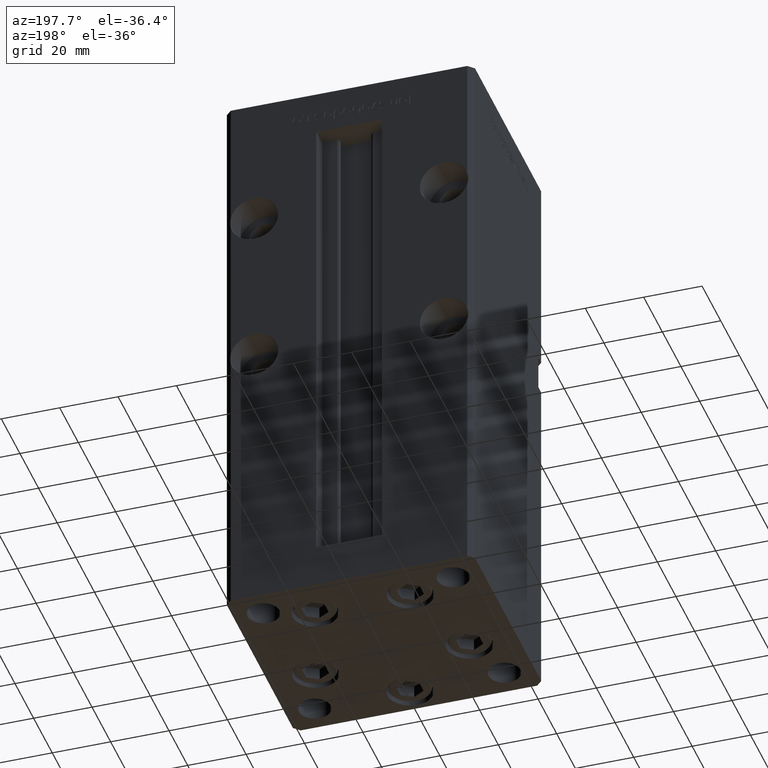
[diagram: clean part render]
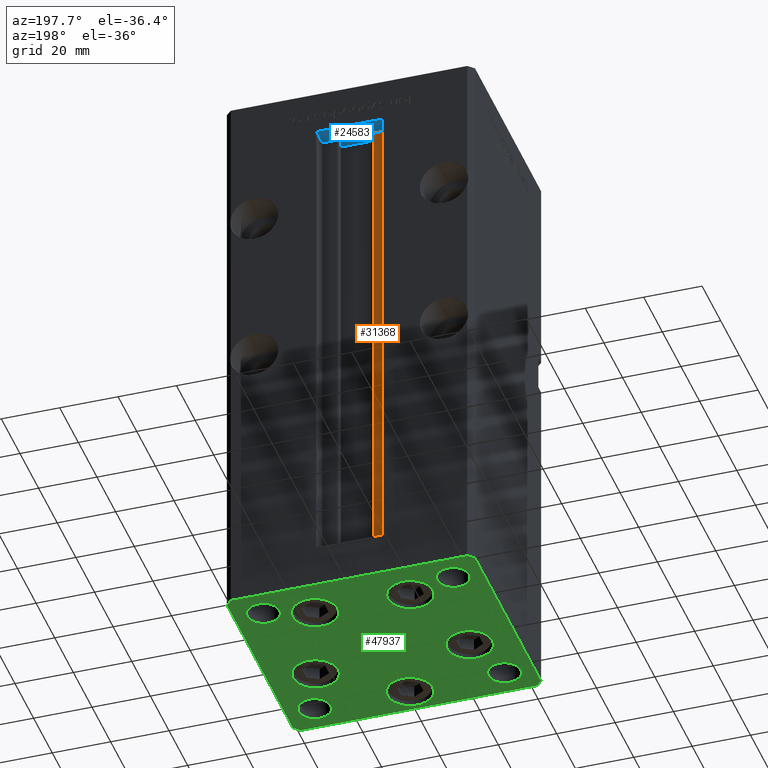
[diagram: same view with three faces highlighted in distinct colors, each labeled with its STEP entity id]
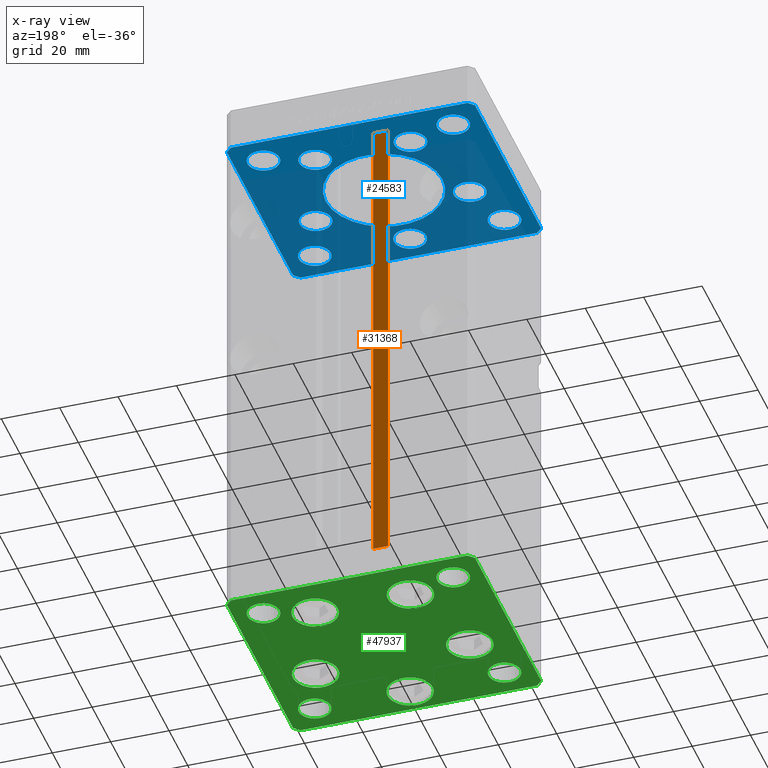
[diagram: x-ray of the same camera — body ghosted, the three highlighted faces saturated]
A machine part, auxiliary view with three faces highlighted in distinct colors.
The next image is the same camera in x-ray (body ghosted, the three faces saturated) — at least one of them is partly hidden behind the body in this view.
Their STEP definitions:

[orange] entity #31368 — the highlighted planar face has unit normal (0, -1, 0).
#6 = DIRECTION ( 'NONE',  ( -1.000000000000000000, 0.000000000000000000, 0.000000000000000000 ) ) ;
#88 = CARTESIAN_POINT ( 'NONE',  ( -6.183333333333997928, 31.00000000000000000, 0.000000000000000000 ) ) ;
#1266 = VERTEX_POINT ( 'NONE', #23713 ) ;
#2817 = CARTESIAN_POINT ( 'NONE',  ( -6.183333333333997928, 31.00000000000000000, 168.5000000000000000 ) ) ;
#5514 = VECTOR ( 'NONE', #21462, 1000.000000000000000 ) ;
#6601 = LINE ( 'NONE', #22735, #43287 ) ;
#8189 = VERTEX_POINT ( 'NONE', #32464 ) ;
#8397 = ORIENTED_EDGE ( 'NONE', *, *, #15494, .F. ) ;
#11380 = DIRECTION ( 'NONE',  ( 0.000000000000000000, -1.000000000000000000, -0.000000000000000000 ) ) ;
#13324 = VECTOR ( 'NONE', #14761, 1000.000000000000000 ) ;
#14761 = DIRECTION ( 'NONE',  ( -0.000000000000000000, -0.000000000000000000, 1.000000000000000000 ) ) ;
#15494 = EDGE_CURVE ( 'NONE', #1266, #43746, #48085, .T. ) ;
#18051 = ORIENTED_EDGE ( 'NONE', *, *, #46082, .T. ) ;
#18931 = AXIS2_PLACEMENT_3D ( 'NONE', #88, #11380, #32894 ) ;
#20110 = EDGE_CURVE ( 'NONE', #43746, #8189, #36849, .T. ) ;
#20512 = FACE_OUTER_BOUND ( 'NONE', #21321, .T. ) ;
#21321 = EDGE_LOOP ( 'NONE', ( #8397, #26878, #18051, #29896 ) ) ;
#21462 = DIRECTION ( 'NONE',  ( 1.000000000000000000, -0.000000000000000000, -0.000000000000000000 ) ) ;
#22735 = CARTESIAN_POINT ( 'NONE',  ( -11.24999999999999822, 31.00000000000000000, 0.000000000000000000 ) ) ;
#23713 = CARTESIAN_POINT ( 'NONE',  ( -6.183333333333997928, 31.00000000000000000, 0.000000000000000000 ) ) ;
#26878 = ORIENTED_EDGE ( 'NONE', *, *, #45515, .F. ) ;
#29896 = ORIENTED_EDGE ( 'NONE', *, *, #20110, .F. ) ;
#30852 = CARTESIAN_POINT ( 'NONE',  ( -11.24999999999999822, 31.00000000000000000, 0.000000000000000000 ) ) ;
#31368 = ADVANCED_FACE ( 'NONE', ( #20512 ), #36924, .F. ) ;
#32464 = CARTESIAN_POINT ( 'NONE',  ( -11.24999999999999822, 31.00000000000000000, 168.5000000000000000 ) ) ;
#32894 = DIRECTION ( 'NONE',  ( 0.000000000000000000, 0.000000000000000000, -1.000000000000000000 ) ) ;
#33846 = LINE ( 'NONE', #37883, #5514 ) ;
#36849 = LINE ( 'NONE', #37117, #44259 ) ;
#36924 = PLANE ( 'NONE',  #18931 ) ;
#37117 = CARTESIAN_POINT ( 'NONE',  ( 0.000000000000000000, 31.00000000000000000, 168.5000000000000000 ) ) ;
#37883 = CARTESIAN_POINT ( 'NONE',  ( -6.183333333333997928, 31.00000000000000000, 0.000000000000000000 ) ) ;
#38079 = DIRECTION ( 'NONE',  ( -0.000000000000000000, -0.000000000000000000, 1.000000000000000000 ) ) ;
#43287 = VECTOR ( 'NONE', #38079, 1000.000000000000000 ) ;
#43746 = VERTEX_POINT ( 'NONE', #2817 ) ;
#44259 = VECTOR ( 'NONE', #6, 1000.000000000000000 ) ;
#45515 = EDGE_CURVE ( 'NONE', #49323, #1266, #33846, .T. ) ;
#46082 = EDGE_CURVE ( 'NONE', #49323, #8189, #6601, .T. ) ;
#47303 = CARTESIAN_POINT ( 'NONE',  ( -6.183333333333997928, 31.00000000000000000, 0.000000000000000000 ) ) ;
#48085 = LINE ( 'NONE', #47303, #13324 ) ;
#49323 = VERTEX_POINT ( 'NONE', #30852 ) ;

[blue] entity #24583 — the highlighted planar face has unit normal (0, 0, 1).
#256 = EDGE_CURVE ( 'NONE', #2017, #50731, #44638, .T. ) ;
#277 = VECTOR ( 'NONE', #16950, 1000.000000000000000 ) ;
#366 = AXIS2_PLACEMENT_3D ( 'NONE', #19542, #45639, #49420 ) ;
#539 = CARTESIAN_POINT ( 'NONE',  ( 40.50000000000000711, 37.50000000000000711, -15.00000000000000000 ) ) ;
#660 = DIRECTION ( 'NONE',  ( 0.000000000000000000, -0.000000000000000000, -1.000000000000000000 ) ) ;
#827 = VECTOR ( 'NONE', #22418, 1000.000000000000000 ) ;
#978 = FACE_BOUND ( 'NONE', #32902, .T. ) ;
#1131 = AXIS2_PLACEMENT_3D ( 'NONE', #43585, #23390, #32002 ) ;
#1181 = LINE ( 'NONE', #18660, #827 ) ;
#1288 = DIRECTION ( 'NONE',  ( 0.000000000000000000, -0.000000000000000000, -1.000000000000000000 ) ) ;
#1493 = VERTEX_POINT ( 'NONE', #46571 ) ;
#1818 = CARTESIAN_POINT ( 'NONE',  ( -26.39865316429777664, -9.333333333333330373, -15.00000000000000000 ) ) ;
#1860 = CIRCLE ( 'NONE', #31922, 5.499999999999998224 ) ;
#1990 = CIRCLE ( 'NONE', #23432, 5.500000000000000000 ) ;
#2017 = VERTEX_POINT ( 'NONE', #36514 ) ;
#2047 = VERTEX_POINT ( 'NONE', #48623 ) ;
#2139 = CIRCLE ( 'NONE', #33948, 5.499999999999998224 ) ;
#2289 = ORIENTED_EDGE ( 'NONE', *, *, #11525, .F. ) ;
#2308 = DIRECTION ( 'NONE',  ( -0.000000000000000000, 0.000000000000000000, 1.000000000000000000 ) ) ;
#2550 = DIRECTION ( 'NONE',  ( 1.000000000000000000, 0.000000000000000000, 0.000000000000000000 ) ) ;
#2917 = CARTESIAN_POINT ( 'NONE',  ( 26.39865316429777664, -9.333333333333330373, -15.00000000000000000 ) ) ;
#2936 = ORIENTED_EDGE ( 'NONE', *, *, #19392, .F. ) ;
#3066 = DIRECTION ( 'NONE',  ( -1.000000000000000000, 0.000000000000000000, 0.000000000000000000 ) ) ;
#3081 = EDGE_LOOP ( 'NONE', ( #8530, #18808 ) ) ;
#3188 = DIRECTION ( 'NONE',  ( 0.000000000000000000, -0.000000000000000000, -1.000000000000000000 ) ) ;
#3408 = VERTEX_POINT ( 'NONE', #36142 ) ;
#3783 = ORIENTED_EDGE ( 'NONE', *, *, #46060, .T. ) ;
#3863 = CIRCLE ( 'NONE', #14175, 5.499999999999998224 ) ;
#3952 = DIRECTION ( 'NONE',  ( 0.000000000000000000, -0.000000000000000000, -1.000000000000000000 ) ) ;
#4131 = CARTESIAN_POINT ( 'NONE',  ( -20.00000000000000000, 2.449293598294706513E-15, -15.00000000000000000 ) ) ;
#4652 = AXIS2_PLACEMENT_3D ( 'NONE', #37509, #660, #32678 ) ;
#5019 = FACE_BOUND ( 'NONE', #3081, .T. ) ;
#5278 = FACE_BOUND ( 'NONE', #16309, .T. ) ;
#5599 = EDGE_CURVE ( 'NONE', #40902, #23048, #6888, .T. ) ;
#5600 = CARTESIAN_POINT ( 'NONE',  ( 42.50000000000001421, 35.50000000000002132, -15.00000000000000000 ) ) ;
#5815 = CARTESIAN_POINT ( 'NONE',  ( -40.50000000000000711, -37.50000000000003553, -15.00000000000000000 ) ) ;
#6621 = ORIENTED_EDGE ( 'NONE', *, *, #8224, .F. ) ;
#6888 = CIRCLE ( 'NONE', #50715, 5.499999999999998224 ) ;
#7089 = AXIS2_PLACEMENT_3D ( 'NONE', #46106, #3952, #9254 ) ;
#7404 = VECTOR ( 'NONE', #20020, 1000.000000000000000 ) ;
#8023 = CARTESIAN_POINT ( 'NONE',  ( -38.00000000000000000, -27.50000000000000355, -15.00000000000000000 ) ) ;
#8096 = CIRCLE ( 'NONE', #4652, 5.499999999999998224 ) ;
#8224 = EDGE_CURVE ( 'NONE', #20137, #25312, #30290, .T. ) ;
#8403 = DIRECTION ( 'NONE',  ( 0.7071067811865487940, -0.7071067811865463515, 0.000000000000000000 ) ) ;
#8426 = EDGE_LOOP ( 'NONE', ( #30405, #25465 ) ) ;
#8451 = VERTEX_POINT ( 'NONE', #28544 ) ;
#8530 = ORIENTED_EDGE ( 'NONE', *, *, #256, .F. ) ;
#8831 = EDGE_LOOP ( 'NONE', ( #51773, #48941 ) ) ;
#8879 = CARTESIAN_POINT ( 'NONE',  ( 32.50000000000000000, 27.49999999999999645, -15.00000000000000000 ) ) ;
#9245 = CARTESIAN_POINT ( 'NONE',  ( 0.000000000000000000, 0.000000000000000000, -15.00000000000000000 ) ) ;
#9254 = DIRECTION ( 'NONE',  ( 1.000000000000000000, 0.000000000000000000, 0.000000000000000000 ) ) ;
#9325 = FACE_BOUND ( 'NONE', #17382, .T. ) ;
#9402 = DIRECTION ( 'NONE',  ( 0.000000000000000000, -0.000000000000000000, -1.000000000000000000 ) ) ;
#9725 = EDGE_CURVE ( 'NONE', #1493, #31456, #1990, .T. ) ;
#9743 = EDGE_CURVE ( 'NONE', #32308, #10624, #17475, .T. ) ;
#10017 = VECTOR ( 'NONE', #51292, 1000.000000000000000 ) ;
#10624 = VERTEX_POINT ( 'NONE', #10894 ) ;
#10894 = CARTESIAN_POINT ( 'NONE',  ( -40.50000000000000000, 37.49999999999997158, -15.00000000000000000 ) ) ;
#11525 = EDGE_CURVE ( 'NONE', #30380, #32308, #35901, .T. ) ;
#11783 = DIRECTION ( 'NONE',  ( 1.000000000000000000, 0.000000000000000000, 0.000000000000000000 ) ) ;
#11987 = DIRECTION ( 'NONE',  ( 0.000000000000000000, -0.000000000000000000, -1.000000000000000000 ) ) ;
#12471 = EDGE_CURVE ( 'NONE', #23048, #40902, #8096, .T. ) ;
#12640 = DIRECTION ( 'NONE',  ( 1.000000000000000000, 0.000000000000000000, 0.000000000000000000 ) ) ;
#13257 = DIRECTION ( 'NONE',  ( -0.000000000000000000, -0.000000000000000000, -1.000000000000000000 ) ) ;
#13413 = DIRECTION ( 'NONE',  ( 1.000000000000000000, 0.000000000000000000, 0.000000000000000000 ) ) ;
#13479 = AXIS2_PLACEMENT_3D ( 'NONE', #46974, #2308, #39155 ) ;
#13734 = CIRCLE ( 'NONE', #36922, 5.499999999999998224 ) ;
#14075 = CIRCLE ( 'NONE', #20933, 5.499999999999998224 ) ;
#14175 = AXIS2_PLACEMENT_3D ( 'NONE', #38947, #35719, #39221 ) ;
#14301 = LINE ( 'NONE', #22886, #20325 ) ;
#14414 = CARTESIAN_POINT ( 'NONE',  ( -16.32291334290544071, 22.74999999999999289, -15.00000000000000000 ) ) ;
#14444 = ORIENTED_EDGE ( 'NONE', *, *, #34405, .F. ) ;
#14637 = VERTEX_POINT ( 'NONE', #22360 ) ;
#14935 = ORIENTED_EDGE ( 'NONE', *, *, #33063, .F. ) ;
#15098 = CIRCLE ( 'NONE', #17693, 5.499999999999998224 ) ;
#15258 = EDGE_CURVE ( 'NONE', #22866, #48529, #2139, .T. ) ;
#15454 = CARTESIAN_POINT ( 'NONE',  ( -31.89865316429777664, -9.333333333333330373, -15.00000000000000000 ) ) ;
#15456 = AXIS2_PLACEMENT_3D ( 'NONE', #9245, #25630, #18097 ) ;
#15467 = DIRECTION ( 'NONE',  ( -0.7071067811865524577, 0.7071067811865426878, 0.000000000000000000 ) ) ;
#15468 = DIRECTION ( 'NONE',  ( 0.000000000000000000, -0.000000000000000000, -1.000000000000000000 ) ) ;
#15498 = EDGE_CURVE ( 'NONE', #30916, #43207, #3863, .T. ) ;
#15511 = CARTESIAN_POINT ( 'NONE',  ( 0.000000000000000000, -28.00000000000000000, -15.00000000000000000 ) ) ;
#15563 = DIRECTION ( 'NONE',  ( 0.000000000000000000, -0.000000000000000000, -1.000000000000000000 ) ) ;
#15817 = ORIENTED_EDGE ( 'NONE', *, *, #32762, .F. ) ;
#16306 = CARTESIAN_POINT ( 'NONE',  ( 38.00000000000000000, 27.49999999999999645, -15.00000000000000000 ) ) ;
#16309 = EDGE_LOOP ( 'NONE', ( #43122, #39316 ) ) ;
#16681 = CARTESIAN_POINT ( 'NONE',  ( 0.000000000000000000, -28.00000000000000000, -15.00000000000000000 ) ) ;
#16827 = CARTESIAN_POINT ( 'NONE',  ( 40.50000000000000711, 37.50000000000000711, -15.00000000000000000 ) ) ;
#16950 = DIRECTION ( 'NONE',  ( -1.000000000000000000, -4.283267841918041508E-16, 0.000000000000000000 ) ) ;
#17382 = EDGE_LOOP ( 'NONE', ( #50074, #29123 ) ) ;
#17395 = FACE_BOUND ( 'NONE', #23164, .T. ) ;
#17458 = ORIENTED_EDGE ( 'NONE', *, *, #19527, .F. ) ;
#17475 = LINE ( 'NONE', #539, #277 ) ;
#17560 = DIRECTION ( 'NONE',  ( 0.000000000000000000, -0.000000000000000000, -1.000000000000000000 ) ) ;
#17659 = FACE_BOUND ( 'NONE', #27340, .T. ) ;
#17693 = AXIS2_PLACEMENT_3D ( 'NONE', #21835, #17560, #46337 ) ;
#17961 = CARTESIAN_POINT ( 'NONE',  ( -32.50000000000000000, -27.50000000000000355, -15.00000000000000000 ) ) ;
#18084 = ORIENTED_EDGE ( 'NONE', *, *, #22107, .F. ) ;
#18097 = DIRECTION ( 'NONE',  ( 1.000000000000000000, 0.000000000000000000, 0.000000000000000000 ) ) ;
#18370 = CIRCLE ( 'NONE', #366, 5.499999999999998224 ) ;
#18577 = CIRCLE ( 'NONE', #44336, 5.499999999999998224 ) ;
#18660 = CARTESIAN_POINT ( 'NONE',  ( -42.50000000000000711, 35.50000000000000000, -15.00000000000000000 ) ) ;
#18808 = ORIENTED_EDGE ( 'NONE', *, *, #42020, .F. ) ;
#19392 = EDGE_CURVE ( 'NONE', #3408, #44634, #51015, .T. ) ;
#19499 = CARTESIAN_POINT ( 'NONE',  ( -40.50000000000000000, 37.49999999999997158, -15.00000000000000000 ) ) ;
#19527 = EDGE_CURVE ( 'NONE', #10624, #14637, #19759, .T. ) ;
#19542 = CARTESIAN_POINT ( 'NONE',  ( -32.50000000000000000, -27.50000000000000355, -15.00000000000000000 ) ) ;
#19734 = CARTESIAN_POINT ( 'NONE',  ( -32.50000000000000000, 27.50000000000000711, -15.00000000000000000 ) ) ;
#19759 = LINE ( 'NONE', #19499, #7404 ) ;
#19782 = VECTOR ( 'NONE', #41094, 1000.000000000000000 ) ;
#20020 = DIRECTION ( 'NONE',  ( -0.7071067811865536790, -0.7071067811865414665, 0.000000000000000000 ) ) ;
#20137 = VERTEX_POINT ( 'NONE', #29038 ) ;
#20239 = ORIENTED_EDGE ( 'NONE', *, *, #15258, .F. ) ;
#20325 = VECTOR ( 'NONE', #34733, 1000.000000000000114 ) ;
#20933 = AXIS2_PLACEMENT_3D ( 'NONE', #42912, #22192, #51279 ) ;
#21672 = FACE_OUTER_BOUND ( 'NONE', #23350, .T. ) ;
#21835 = CARTESIAN_POINT ( 'NONE',  ( 26.39865316429777664, -9.333333333333330373, -15.00000000000000000 ) ) ;
#22107 = EDGE_CURVE ( 'NONE', #25312, #20137, #32280, .T. ) ;
#22192 = DIRECTION ( 'NONE',  ( 0.000000000000000000, 0.000000000000000000, 1.000000000000000000 ) ) ;
#22213 = VERTEX_POINT ( 'NONE', #34086 ) ;
#22360 = CARTESIAN_POINT ( 'NONE',  ( -42.50000000000000711, 35.50000000000000000, -15.00000000000000000 ) ) ;
#22418 = DIRECTION ( 'NONE',  ( 9.773090005503134168E-17, -1.000000000000000000, 0.000000000000000000 ) ) ;
#22534 = EDGE_CURVE ( 'NONE', #42186, #47859, #15098, .T. ) ;
#22866 = VERTEX_POINT ( 'NONE', #42420 ) ;
#22886 = CARTESIAN_POINT ( 'NONE',  ( 40.50000000000001421, -37.49999999999992184, -15.00000000000000000 ) ) ;
#23048 = VERTEX_POINT ( 'NONE', #51844 ) ;
#23164 = EDGE_LOOP ( 'NONE', ( #45898, #15817 ) ) ;
#23243 = CIRCLE ( 'NONE', #33557, 5.499999999999998224 ) ;
#23350 = EDGE_LOOP ( 'NONE', ( #28902, #14444, #17458, #31608, #2289, #30386, #45032, #2936 ) ) ;
#23364 = EDGE_CURVE ( 'NONE', #43207, #30916, #18577, .T. ) ;
#23390 = DIRECTION ( 'NONE',  ( 0.000000000000000000, -0.000000000000000000, -1.000000000000000000 ) ) ;
#23432 = AXIS2_PLACEMENT_3D ( 'NONE', #16681, #9402, #12640 ) ;
#23983 = ORIENTED_EDGE ( 'NONE', *, *, #40888, .F. ) ;
#24086 = CIRCLE ( 'NONE', #30988, 5.500000000000000000 ) ;
#24166 = VERTEX_POINT ( 'NONE', #33659 ) ;
#24583 = ADVANCED_FACE ( 'NONE', ( #5019, #37827, #978, #17395, #33793, #9325, #25713, #5278, #21672, #17659, #27045 ), #34861, .F. ) ;
#24610 = CARTESIAN_POINT ( 'NONE',  ( 40.50000000000001421, -37.49999999999992184, -15.00000000000000000 ) ) ;
#25007 = DIRECTION ( 'NONE',  ( 1.000000000000000000, 0.000000000000000000, 0.000000000000000000 ) ) ;
#25076 = DIRECTION ( 'NONE',  ( -1.000000000000000000, 0.000000000000000000, 0.000000000000000000 ) ) ;
#25097 = VERTEX_POINT ( 'NONE', #45261 ) ;
#25259 = EDGE_CURVE ( 'NONE', #44634, #22213, #14301, .T. ) ;
#25312 = VERTEX_POINT ( 'NONE', #39288 ) ;
#25465 = ORIENTED_EDGE ( 'NONE', *, *, #5599, .F. ) ;
#25486 = CARTESIAN_POINT ( 'NONE',  ( 42.50000000000000711, -35.49999999999992895, -15.00000000000000000 ) ) ;
#25630 = DIRECTION ( 'NONE',  ( 0.000000000000000000, -0.000000000000000000, -1.000000000000000000 ) ) ;
#25713 = FACE_BOUND ( 'NONE', #45858, .T. ) ;
#26669 = CARTESIAN_POINT ( 'NONE',  ( 5.500000000000000000, -28.00000000000000000, -15.00000000000000000 ) ) ;
#27045 = FACE_BOUND ( 'NONE', #8831, .T. ) ;
#27336 = DIRECTION ( 'NONE',  ( 1.000000000000000000, 0.000000000000000000, 0.000000000000000000 ) ) ;
#27340 = EDGE_LOOP ( 'NONE', ( #20239, #23983 ) ) ;
#28544 = CARTESIAN_POINT ( 'NONE',  ( -27.00000000000000355, -27.50000000000000355, -15.00000000000000000 ) ) ;
#28579 = CARTESIAN_POINT ( 'NONE',  ( -38.00000000000000000, 27.50000000000000711, -15.00000000000000000 ) ) ;
#28593 = CARTESIAN_POINT ( 'NONE',  ( -42.50000000000000000, -35.50000000000004263, -15.00000000000000000 ) ) ;
#28838 = DIRECTION ( 'NONE',  ( -0.000000000000000000, -0.000000000000000000, -1.000000000000000000 ) ) ;
#28902 = ORIENTED_EDGE ( 'NONE', *, *, #52978, .F. ) ;
#29038 = CARTESIAN_POINT ( 'NONE',  ( 10.82291334290544604, 22.74999999999999289, -15.00000000000000000 ) ) ;
#29123 = ORIENTED_EDGE ( 'NONE', *, *, #43993, .F. ) ;
#29660 = DIRECTION ( 'NONE',  ( -1.000000000000000000, 0.000000000000000000, 0.000000000000000000 ) ) ;
#29921 = CARTESIAN_POINT ( 'NONE',  ( -32.50000000000000000, 27.50000000000000711, -15.00000000000000000 ) ) ;
#30290 = CIRCLE ( 'NONE', #7089, 5.499999999999998224 ) ;
#30380 = VERTEX_POINT ( 'NONE', #5600 ) ;
#30386 = ORIENTED_EDGE ( 'NONE', *, *, #32057, .F. ) ;
#30405 = ORIENTED_EDGE ( 'NONE', *, *, #12471, .F. ) ;
#30410 = EDGE_CURVE ( 'NONE', #32719, #8451, #41185, .T. ) ;
#30607 = DIRECTION ( 'NONE',  ( 0.000000000000000000, 0.000000000000000000, 1.000000000000000000 ) ) ;
#30675 = EDGE_CURVE ( 'NONE', #2047, #24166, #48958, .T. ) ;
#30916 = VERTEX_POINT ( 'NONE', #53107 ) ;
#30988 = AXIS2_PLACEMENT_3D ( 'NONE', #15511, #11987, #27336 ) ;
#31456 = VERTEX_POINT ( 'NONE', #26669 ) ;
#31608 = ORIENTED_EDGE ( 'NONE', *, *, #9743, .F. ) ;
#31922 = AXIS2_PLACEMENT_3D ( 'NONE', #19734, #39913, #3066 ) ;
#32002 = DIRECTION ( 'NONE',  ( 1.000000000000000000, 0.000000000000000000, 0.000000000000000000 ) ) ;
#32057 = EDGE_CURVE ( 'NONE', #22213, #30380, #41893, .T. ) ;
#32280 = CIRCLE ( 'NONE', #46878, 5.499999999999998224 ) ;
#32308 = VERTEX_POINT ( 'NONE', #16827 ) ;
#32678 = DIRECTION ( 'NONE',  ( 1.000000000000000000, 0.000000000000000000, 0.000000000000000000 ) ) ;
#32719 = VERTEX_POINT ( 'NONE', #8023 ) ;
#32762 = EDGE_CURVE ( 'NONE', #47859, #42186, #23243, .T. ) ;
#32892 = AXIS2_PLACEMENT_3D ( 'NONE', #48275, #15468, #52853 ) ;
#32902 = EDGE_LOOP ( 'NONE', ( #14935, #38902 ) ) ;
#33063 = EDGE_CURVE ( 'NONE', #31456, #1493, #24086, .T. ) ;
#33557 = AXIS2_PLACEMENT_3D ( 'NONE', #2917, #3188, #48653 ) ;
#33659 = CARTESIAN_POINT ( 'NONE',  ( -21.82291334290544071, 22.74999999999999289, -15.00000000000000000 ) ) ;
#33793 = FACE_BOUND ( 'NONE', #50312, .T. ) ;
#33821 = VECTOR ( 'NONE', #15467, 1000.000000000000000 ) ;
#33948 = AXIS2_PLACEMENT_3D ( 'NONE', #29921, #13257, #29660 ) ;
#34086 = CARTESIAN_POINT ( 'NONE',  ( 42.50000000000000711, -35.49999999999992895, -15.00000000000000000 ) ) ;
#34311 = DIRECTION ( 'NONE',  ( 0.000000000000000000, -0.000000000000000000, -1.000000000000000000 ) ) ;
#34405 = EDGE_CURVE ( 'NONE', #14637, #45226, #1181, .T. ) ;
#34733 = DIRECTION ( 'NONE',  ( 0.7071067811865474617, 0.7071067811865474617, 0.000000000000000000 ) ) ;
#34861 = PLANE ( 'NONE',  #13479 ) ;
#34893 = EDGE_CURVE ( 'NONE', #25097, #39792, #13734, .T. ) ;
#35719 = DIRECTION ( 'NONE',  ( -0.000000000000000000, -0.000000000000000000, -1.000000000000000000 ) ) ;
#35901 = LINE ( 'NONE', #52321, #33821 ) ;
#36142 = CARTESIAN_POINT ( 'NONE',  ( -40.50000000000000711, -37.50000000000003553, -15.00000000000000000 ) ) ;
#36514 = CARTESIAN_POINT ( 'NONE',  ( 20.00000000000000000, 0.000000000000000000, -15.00000000000000000 ) ) ;
#36922 = AXIS2_PLACEMENT_3D ( 'NONE', #8879, #37641, #25007 ) ;
#37059 = CARTESIAN_POINT ( 'NONE',  ( 16.32291334290544071, 22.74999999999999289, -15.00000000000000000 ) ) ;
#37453 = CARTESIAN_POINT ( 'NONE',  ( 32.50000000000000000, -27.50000000000000355, -15.00000000000000000 ) ) ;
#37509 = CARTESIAN_POINT ( 'NONE',  ( -26.39865316429777664, -9.333333333333330373, -15.00000000000000000 ) ) ;
#37641 = DIRECTION ( 'NONE',  ( 0.000000000000000000, 0.000000000000000000, 1.000000000000000000 ) ) ;
#37827 = FACE_BOUND ( 'NONE', #8426, .T. ) ;
#38598 = AXIS2_PLACEMENT_3D ( 'NONE', #14414, #34311, #2550 ) ;
#38902 = ORIENTED_EDGE ( 'NONE', *, *, #9725, .F. ) ;
#38947 = CARTESIAN_POINT ( 'NONE',  ( 32.50000000000000000, -27.50000000000000355, -15.00000000000000000 ) ) ;
#39155 = DIRECTION ( 'NONE',  ( 1.000000000000000000, 0.000000000000000000, 0.000000000000000000 ) ) ;
#39221 = DIRECTION ( 'NONE',  ( -1.000000000000000000, 0.000000000000000000, 0.000000000000000000 ) ) ;
#39288 = CARTESIAN_POINT ( 'NONE',  ( 21.82291334290544071, 22.74999999999999289, -15.00000000000000000 ) ) ;
#39316 = ORIENTED_EDGE ( 'NONE', *, *, #30410, .T. ) ;
#39792 = VERTEX_POINT ( 'NONE', #16306 ) ;
#39913 = DIRECTION ( 'NONE',  ( -0.000000000000000000, -0.000000000000000000, -1.000000000000000000 ) ) ;
#40548 = CARTESIAN_POINT ( 'NONE',  ( 20.89865316429778019, -9.333333333333330373, -15.00000000000000000 ) ) ;
#40888 = EDGE_CURVE ( 'NONE', #48529, #22866, #1860, .T. ) ;
#40902 = VERTEX_POINT ( 'NONE', #15454 ) ;
#41094 = DIRECTION ( 'NONE',  ( 9.773090005503145261E-17, 1.000000000000000000, 0.000000000000000000 ) ) ;
#41185 = CIRCLE ( 'NONE', #42077, 5.499999999999998224 ) ;
#41449 = CIRCLE ( 'NONE', #32892, 20.00000000000000000 ) ;
#41491 = CIRCLE ( 'NONE', #1131, 5.500000000000000000 ) ;
#41893 = LINE ( 'NONE', #25486, #19782 ) ;
#42020 = EDGE_CURVE ( 'NONE', #50731, #2017, #41449, .T. ) ;
#42077 = AXIS2_PLACEMENT_3D ( 'NONE', #17961, #30607, #42709 ) ;
#42186 = VERTEX_POINT ( 'NONE', #50682 ) ;
#42420 = CARTESIAN_POINT ( 'NONE',  ( -27.00000000000000355, 27.50000000000000711, -15.00000000000000000 ) ) ;
#42709 = DIRECTION ( 'NONE',  ( 1.000000000000000000, 0.000000000000000000, 0.000000000000000000 ) ) ;
#42912 = CARTESIAN_POINT ( 'NONE',  ( 32.50000000000000000, 27.49999999999999645, -15.00000000000000000 ) ) ;
#43122 = ORIENTED_EDGE ( 'NONE', *, *, #45867, .T. ) ;
#43207 = VERTEX_POINT ( 'NONE', #48943 ) ;
#43585 = CARTESIAN_POINT ( 'NONE',  ( -16.32291334290544071, 22.74999999999999289, -15.00000000000000000 ) ) ;
#43993 = EDGE_CURVE ( 'NONE', #24166, #2047, #41491, .T. ) ;
#44336 = AXIS2_PLACEMENT_3D ( 'NONE', #37453, #28838, #25076 ) ;
#44634 = VERTEX_POINT ( 'NONE', #24610 ) ;
#44638 = CIRCLE ( 'NONE', #15456, 20.00000000000000000 ) ;
#44758 = ORIENTED_EDGE ( 'NONE', *, *, #34893, .T. ) ;
#45032 = ORIENTED_EDGE ( 'NONE', *, *, #25259, .F. ) ;
#45226 = VERTEX_POINT ( 'NONE', #28593 ) ;
#45261 = CARTESIAN_POINT ( 'NONE',  ( 27.00000000000000355, 27.49999999999999645, -15.00000000000000000 ) ) ;
#45264 = LINE ( 'NONE', #52090, #49408 ) ;
#45639 = DIRECTION ( 'NONE',  ( 0.000000000000000000, 0.000000000000000000, 1.000000000000000000 ) ) ;
#45858 = EDGE_LOOP ( 'NONE', ( #3783, #44758 ) ) ;
#45867 = EDGE_CURVE ( 'NONE', #8451, #32719, #18370, .T. ) ;
#45898 = ORIENTED_EDGE ( 'NONE', *, *, #22534, .F. ) ;
#46060 = EDGE_CURVE ( 'NONE', #39792, #25097, #14075, .T. ) ;
#46106 = CARTESIAN_POINT ( 'NONE',  ( 16.32291334290544071, 22.74999999999999289, -15.00000000000000000 ) ) ;
#46337 = DIRECTION ( 'NONE',  ( 1.000000000000000000, 0.000000000000000000, 0.000000000000000000 ) ) ;
#46571 = CARTESIAN_POINT ( 'NONE',  ( -5.500000000000000000, -28.00000000000000000, -15.00000000000000000 ) ) ;
#46878 = AXIS2_PLACEMENT_3D ( 'NONE', #37059, #15563, #11783 ) ;
#46974 = CARTESIAN_POINT ( 'NONE',  ( 0.000000000000000000, 0.000000000000000000, -15.00000000000000000 ) ) ;
#47859 = VERTEX_POINT ( 'NONE', #40548 ) ;
#48275 = CARTESIAN_POINT ( 'NONE',  ( 0.000000000000000000, 0.000000000000000000, -15.00000000000000000 ) ) ;
#48529 = VERTEX_POINT ( 'NONE', #28579 ) ;
#48623 = CARTESIAN_POINT ( 'NONE',  ( -10.82291334290544249, 22.74999999999999289, -15.00000000000000000 ) ) ;
#48653 = DIRECTION ( 'NONE',  ( 1.000000000000000000, 0.000000000000000000, 0.000000000000000000 ) ) ;
#48941 = ORIENTED_EDGE ( 'NONE', *, *, #23364, .F. ) ;
#48943 = CARTESIAN_POINT ( 'NONE',  ( 27.00000000000000355, -27.50000000000000355, -15.00000000000000000 ) ) ;
#48958 = CIRCLE ( 'NONE', #38598, 5.500000000000000000 ) ;
#49408 = VECTOR ( 'NONE', #8403, 1000.000000000000000 ) ;
#49420 = DIRECTION ( 'NONE',  ( 1.000000000000000000, 0.000000000000000000, 0.000000000000000000 ) ) ;
#50074 = ORIENTED_EDGE ( 'NONE', *, *, #30675, .F. ) ;
#50312 = EDGE_LOOP ( 'NONE', ( #18084, #6621 ) ) ;
#50682 = CARTESIAN_POINT ( 'NONE',  ( 31.89865316429777664, -9.333333333333330373, -15.00000000000000000 ) ) ;
#50715 = AXIS2_PLACEMENT_3D ( 'NONE', #1818, #1288, #13413 ) ;
#50731 = VERTEX_POINT ( 'NONE', #4131 ) ;
#51015 = LINE ( 'NONE', #5815, #10017 ) ;
#51279 = DIRECTION ( 'NONE',  ( 1.000000000000000000, 0.000000000000000000, 0.000000000000000000 ) ) ;
#51292 = DIRECTION ( 'NONE',  ( 1.000000000000000000, 1.370645709413773283E-15, 0.000000000000000000 ) ) ;
#51773 = ORIENTED_EDGE ( 'NONE', *, *, #15498, .F. ) ;
#51844 = CARTESIAN_POINT ( 'NONE',  ( -20.89865316429778019, -9.333333333333330373, -15.00000000000000000 ) ) ;
#52090 = CARTESIAN_POINT ( 'NONE',  ( -42.50000000000000000, -35.50000000000004263, -15.00000000000000000 ) ) ;
#52321 = CARTESIAN_POINT ( 'NONE',  ( 42.50000000000001421, 35.50000000000002132, -15.00000000000000000 ) ) ;
#52853 = DIRECTION ( 'NONE',  ( 1.000000000000000000, 0.000000000000000000, 0.000000000000000000 ) ) ;
#52978 = EDGE_CURVE ( 'NONE', #45226, #3408, #45264, .T. ) ;
#53107 = CARTESIAN_POINT ( 'NONE',  ( 38.00000000000000000, -27.50000000000000355, -15.00000000000000000 ) ) ;

[green] entity #47937 — the highlighted planar face has unit normal (0, 0, -1).
#371 = DIRECTION ( 'NONE',  ( -0.000000000000000000, 0.000000000000000000, 1.000000000000000000 ) ) ;
#527 = CARTESIAN_POINT ( 'NONE',  ( -27.00000000000000355, -27.49999999999999645, 0.000000000000000000 ) ) ;
#647 = CARTESIAN_POINT ( 'NONE',  ( 40.50000000000000000, -37.50000000000000711, 0.000000000000000000 ) ) ;
#718 = DIRECTION ( 'NONE',  ( 1.000000000000000000, 0.000000000000000000, 0.000000000000000000 ) ) ;
#1061 = CIRCLE ( 'NONE', #16498, 7.750000000000000000 ) ;
#1243 = AXIS2_PLACEMENT_3D ( 'NONE', #1388, #2181, #38231 ) ;
#1388 = CARTESIAN_POINT ( 'NONE',  ( -26.39865316429776954, -9.333333333333337478, 0.000000000000000000 ) ) ;
#1809 = ORIENTED_EDGE ( 'NONE', *, *, #20402, .T. ) ;
#1918 = AXIS2_PLACEMENT_3D ( 'NONE', #52858, #12760, #9003 ) ;
#2181 = DIRECTION ( 'NONE',  ( 0.000000000000000000, -0.000000000000000000, -1.000000000000000000 ) ) ;
#2517 = CARTESIAN_POINT ( 'NONE',  ( -16.32291334290543006, 22.74999999999999645, 0.000000000000000000 ) ) ;
#2608 = EDGE_CURVE ( 'NONE', #16957, #40676, #39562, .T. ) ;
#2611 = EDGE_LOOP ( 'NONE', ( #35787, #10092 ) ) ;
#3005 = CIRCLE ( 'NONE', #39952, 5.499999999999998224 ) ;
#3145 = CARTESIAN_POINT ( 'NONE',  ( 3.429011037612589276E-15, -28.00000000000000000, 0.000000000000000000 ) ) ;
#3500 = ORIENTED_EDGE ( 'NONE', *, *, #21508, .T. ) ;
#4346 = CARTESIAN_POINT ( 'NONE',  ( 27.00000000000000355, -27.49999999999999645, 0.000000000000000000 ) ) ;
#4802 = ORIENTED_EDGE ( 'NONE', *, *, #22373, .T. ) ;
#4869 = CARTESIAN_POINT ( 'NONE',  ( 40.49999999999991473, 37.50000000000000711, 0.000000000000000000 ) ) ;
#4928 = VERTEX_POINT ( 'NONE', #49392 ) ;
#5955 = VERTEX_POINT ( 'NONE', #5992 ) ;
#5992 = CARTESIAN_POINT ( 'NONE',  ( 42.50000000000000711, -35.50000000000000000, 0.000000000000000000 ) ) ;
#6025 = FACE_BOUND ( 'NONE', #18189, .T. ) ;
#6481 = EDGE_LOOP ( 'NONE', ( #28580, #34213 ) ) ;
#6962 = EDGE_LOOP ( 'NONE', ( #3500, #19800 ) ) ;
#6983 = EDGE_CURVE ( 'NONE', #24548, #26293, #45561, .T. ) ;
#7037 = EDGE_CURVE ( 'NONE', #49071, #41288, #21640, .T. ) ;
#7489 = ORIENTED_EDGE ( 'NONE', *, *, #45448, .F. ) ;
#7647 = CARTESIAN_POINT ( 'NONE',  ( -32.50000000000000000, -27.49999999999999645, 0.000000000000000000 ) ) ;
#8605 = CIRCLE ( 'NONE', #36957, 7.750000000000000000 ) ;
#8780 = CARTESIAN_POINT ( 'NONE',  ( 8.572913342905422951, 22.75000000000000000, 0.000000000000000000 ) ) ;
#8823 = AXIS2_PLACEMENT_3D ( 'NONE', #37208, #371, #21067 ) ;
#8899 = VECTOR ( 'NONE', #38440, 1000.000000000000000 ) ;
#8951 = CARTESIAN_POINT ( 'NONE',  ( -42.50000000000000000, -35.50000000000000711, 0.000000000000000000 ) ) ;
#9003 = DIRECTION ( 'NONE',  ( 1.000000000000000000, 0.000000000000000000, 0.000000000000000000 ) ) ;
#10092 = ORIENTED_EDGE ( 'NONE', *, *, #2608, .T. ) ;
#10166 = DIRECTION ( 'NONE',  ( 0.000000000000000000, -0.000000000000000000, -1.000000000000000000 ) ) ;
#10331 = FACE_BOUND ( 'NONE', #26348, .T. ) ;
#11213 = DIRECTION ( 'NONE',  ( 1.000000000000000000, 0.000000000000000000, 0.000000000000000000 ) ) ;
#11271 = VERTEX_POINT ( 'NONE', #25706 ) ;
#11621 = CARTESIAN_POINT ( 'NONE',  ( 42.50000000000000711, -35.50000000000000000, 0.000000000000000000 ) ) ;
#11791 = ORIENTED_EDGE ( 'NONE', *, *, #38434, .T. ) ;
#12197 = EDGE_CURVE ( 'NONE', #39964, #16449, #16667, .T. ) ;
#12760 = DIRECTION ( 'NONE',  ( -0.000000000000000000, 0.000000000000000000, 1.000000000000000000 ) ) ;
#12999 = DIRECTION ( 'NONE',  ( -0.7071067811865463515, -0.7071067811865487940, 0.000000000000000000 ) ) ;
#13609 = VERTEX_POINT ( 'NONE', #40135 ) ;
#13980 = EDGE_CURVE ( 'NONE', #45644, #44930, #44587, .T. ) ;
#14104 = FACE_BOUND ( 'NONE', #6481, .T. ) ;
#14459 = ORIENTED_EDGE ( 'NONE', *, *, #50989, .T. ) ;
#14511 = CIRCLE ( 'NONE', #21364, 7.750000000000003553 ) ;
#14606 = DIRECTION ( 'NONE',  ( 0.000000000000000000, -0.000000000000000000, -1.000000000000000000 ) ) ;
#14987 = AXIS2_PLACEMENT_3D ( 'NONE', #21155, #37569, #718 ) ;
#15000 = DIRECTION ( 'NONE',  ( 1.000000000000000000, 0.000000000000000000, 0.000000000000000000 ) ) ;
#15689 = CIRCLE ( 'NONE', #8823, 5.499999999999998224 ) ;
#15926 = CARTESIAN_POINT ( 'NONE',  ( 40.49999999999991473, 37.50000000000000711, 0.000000000000000000 ) ) ;
#16282 = LINE ( 'NONE', #49104, #36539 ) ;
#16449 = VERTEX_POINT ( 'NONE', #26601 ) ;
#16498 = AXIS2_PLACEMENT_3D ( 'NONE', #3145, #10166, #35960 ) ;
#16667 = CIRCLE ( 'NONE', #14987, 7.750000000000000000 ) ;
#16876 = CARTESIAN_POINT ( 'NONE',  ( 7.750000000000003553, -28.00000000000000000, 0.000000000000000000 ) ) ;
#16957 = VERTEX_POINT ( 'NONE', #30788 ) ;
#17431 = EDGE_CURVE ( 'NONE', #29066, #32388, #3005, .T. ) ;
#17584 = VERTEX_POINT ( 'NONE', #45621 ) ;
#18134 = FACE_BOUND ( 'NONE', #40969, .T. ) ;
#18189 = EDGE_LOOP ( 'NONE', ( #31655, #7489 ) ) ;
#18212 = AXIS2_PLACEMENT_3D ( 'NONE', #30878, #43241, #43772 ) ;
#18295 = CARTESIAN_POINT ( 'NONE',  ( -32.50000000000000000, 27.50000000000000355, 0.000000000000000000 ) ) ;
#18539 = VECTOR ( 'NONE', #12999, 1000.000000000000000 ) ;
#18672 = FACE_OUTER_BOUND ( 'NONE', #43192, .T. ) ;
#19206 = ORIENTED_EDGE ( 'NONE', *, *, #34333, .T. ) ;
#19258 = DIRECTION ( 'NONE',  ( 1.000000000000000000, 0.000000000000000000, 0.000000000000000000 ) ) ;
#19703 = DIRECTION ( 'NONE',  ( 0.000000000000000000, -0.000000000000000000, -1.000000000000000000 ) ) ;
#19730 = CARTESIAN_POINT ( 'NONE',  ( 3.429011037612589276E-15, -28.00000000000000000, 0.000000000000000000 ) ) ;
#19800 = ORIENTED_EDGE ( 'NONE', *, *, #31093, .T. ) ;
#20402 = EDGE_CURVE ( 'NONE', #11271, #49833, #16282, .T. ) ;
#20676 = CARTESIAN_POINT ( 'NONE',  ( -38.00000000000000000, 27.50000000000000355, 0.000000000000000000 ) ) ;
#20832 = DIRECTION ( 'NONE',  ( -0.7071067811865474617, 0.7071067811865474617, 0.000000000000000000 ) ) ;
#21067 = DIRECTION ( 'NONE',  ( 1.000000000000000000, 0.000000000000000000, 0.000000000000000000 ) ) ;
#21082 = LINE ( 'NONE', #647, #27577 ) ;
#21155 = CARTESIAN_POINT ( 'NONE',  ( -26.39865316429776954, -9.333333333333337478, 0.000000000000000000 ) ) ;
#21364 = AXIS2_PLACEMENT_3D ( 'NONE', #30842, #27319, #19258 ) ;
#21508 = EDGE_CURVE ( 'NONE', #27490, #13609, #50353, .T. ) ;
#21640 = CIRCLE ( 'NONE', #1918, 5.499999999999998224 ) ;
#22296 = ORIENTED_EDGE ( 'NONE', *, *, #42956, .T. ) ;
#22358 = AXIS2_PLACEMENT_3D ( 'NONE', #7647, #52075, #39673 ) ;
#22373 = EDGE_CURVE ( 'NONE', #42968, #45644, #53081, .T. ) ;
#22392 = CARTESIAN_POINT ( 'NONE',  ( -32.50000000000000000, -27.49999999999999645, 0.000000000000000000 ) ) ;
#23166 = CIRCLE ( 'NONE', #37776, 7.750000000000000000 ) ;
#23486 = DIRECTION ( 'NONE',  ( 1.000000000000000000, 0.000000000000000000, 0.000000000000000000 ) ) ;
#23686 = ORIENTED_EDGE ( 'NONE', *, *, #29720, .T. ) ;
#24429 = CIRCLE ( 'NONE', #1243, 7.750000000000000000 ) ;
#24548 = VERTEX_POINT ( 'NONE', #38350 ) ;
#24681 = DIRECTION ( 'NONE',  ( 1.000000000000000000, 0.000000000000000000, 0.000000000000000000 ) ) ;
#24735 = ORIENTED_EDGE ( 'NONE', *, *, #47274, .T. ) ;
#25420 = ORIENTED_EDGE ( 'NONE', *, *, #42684, .F. ) ;
#25689 = CARTESIAN_POINT ( 'NONE',  ( 18.64865316429776954, -9.333333333333330373, 0.000000000000000000 ) ) ;
#25706 = CARTESIAN_POINT ( 'NONE',  ( 42.49999999999992895, 35.50000000000000000, 0.000000000000000000 ) ) ;
#26293 = VERTEX_POINT ( 'NONE', #527 ) ;
#26348 = EDGE_LOOP ( 'NONE', ( #33801, #24735 ) ) ;
#26461 = FACE_BOUND ( 'NONE', #2611, .T. ) ;
#26601 = CARTESIAN_POINT ( 'NONE',  ( -18.64865316429776954, -9.333333333333335702, 0.000000000000000000 ) ) ;
#27077 = DIRECTION ( 'NONE',  ( -0.000000000000000000, 0.000000000000000000, 1.000000000000000000 ) ) ;
#27319 = DIRECTION ( 'NONE',  ( 0.000000000000000000, -0.000000000000000000, -1.000000000000000000 ) ) ;
#27490 = VERTEX_POINT ( 'NONE', #52870 ) ;
#27577 = VECTOR ( 'NONE', #49894, 1000.000000000000114 ) ;
#27597 = DIRECTION ( 'NONE',  ( 0.000000000000000000, -0.000000000000000000, -1.000000000000000000 ) ) ;
#27831 = AXIS2_PLACEMENT_3D ( 'NONE', #19730, #36147, #52571 ) ;
#28002 = CARTESIAN_POINT ( 'NONE',  ( -40.50000000000000711, 37.49999999999997868, 0.000000000000000000 ) ) ;
#28109 = EDGE_CURVE ( 'NONE', #40676, #16957, #14511, .T. ) ;
#28525 = CARTESIAN_POINT ( 'NONE',  ( 38.00000000000000000, 27.49999999999999645, 0.000000000000000000 ) ) ;
#28547 = DIRECTION ( 'NONE',  ( 0.000000000000000000, -0.000000000000000000, -1.000000000000000000 ) ) ;
#28578 = CARTESIAN_POINT ( 'NONE',  ( -40.50000000000000711, 37.49999999999997868, 0.000000000000000000 ) ) ;
#28580 = ORIENTED_EDGE ( 'NONE', *, *, #30501, .T. ) ;
#28618 = LINE ( 'NONE', #49091, #43751 ) ;
#28950 = ORIENTED_EDGE ( 'NONE', *, *, #48183, .T. ) ;
#29066 = VERTEX_POINT ( 'NONE', #28525 ) ;
#29720 = EDGE_CURVE ( 'NONE', #4928, #34008, #23166, .T. ) ;
#30112 = LINE ( 'NONE', #46796, #8899 ) ;
#30420 = ORIENTED_EDGE ( 'NONE', *, *, #37540, .T. ) ;
#30501 = EDGE_CURVE ( 'NONE', #42399, #43108, #39493, .T. ) ;
#30719 = VERTEX_POINT ( 'NONE', #43173 ) ;
#30788 = CARTESIAN_POINT ( 'NONE',  ( 24.07291334290542650, 22.75000000000000000, 0.000000000000000000 ) ) ;
#30842 = CARTESIAN_POINT ( 'NONE',  ( 16.32291334290542295, 22.75000000000000000, 0.000000000000000000 ) ) ;
#30878 = CARTESIAN_POINT ( 'NONE',  ( 26.39865316429776954, -9.333333333333330373, 0.000000000000000000 ) ) ;
#31093 = EDGE_CURVE ( 'NONE', #13609, #27490, #8605, .T. ) ;
#31312 = FACE_BOUND ( 'NONE', #6962, .T. ) ;
#31533 = DIRECTION ( 'NONE',  ( -1.000000000000000000, -3.426614273534436165E-16, 0.000000000000000000 ) ) ;
#31572 = DIRECTION ( 'NONE',  ( 1.000000000000000000, 0.000000000000000000, 0.000000000000000000 ) ) ;
#31655 = ORIENTED_EDGE ( 'NONE', *, *, #7037, .F. ) ;
#32072 = AXIS2_PLACEMENT_3D ( 'NONE', #50963, #33554, #47449 ) ;
#32193 = DIRECTION ( 'NONE',  ( 0.000000000000000000, -0.000000000000000000, -1.000000000000000000 ) ) ;
#32221 = CARTESIAN_POINT ( 'NONE',  ( -42.50000000000000711, 35.49999999999997158, 0.000000000000000000 ) ) ;
#32388 = VERTEX_POINT ( 'NONE', #46937 ) ;
#32635 = DIRECTION ( 'NONE',  ( 0.000000000000000000, -0.000000000000000000, -1.000000000000000000 ) ) ;
#32901 = CARTESIAN_POINT ( 'NONE',  ( 16.32291334290542295, 22.75000000000000000, 0.000000000000000000 ) ) ;
#33408 = CARTESIAN_POINT ( 'NONE',  ( 38.00000000000000000, -27.49999999999999645, 0.000000000000000000 ) ) ;
#33554 = DIRECTION ( 'NONE',  ( -0.000000000000000000, 0.000000000000000000, 1.000000000000000000 ) ) ;
#33801 = ORIENTED_EDGE ( 'NONE', *, *, #12197, .T. ) ;
#33896 = ORIENTED_EDGE ( 'NONE', *, *, #41493, .T. ) ;
#34008 = VERTEX_POINT ( 'NONE', #25689 ) ;
#34213 = ORIENTED_EDGE ( 'NONE', *, *, #35141, .T. ) ;
#34333 = EDGE_CURVE ( 'NONE', #44930, #30719, #28618, .T. ) ;
#34541 = FACE_BOUND ( 'NONE', #47804, .T. ) ;
#34707 = DIRECTION ( 'NONE',  ( -0.000000000000000000, 0.000000000000000000, 1.000000000000000000 ) ) ;
#35141 = EDGE_CURVE ( 'NONE', #43108, #42399, #40356, .T. ) ;
#35787 = ORIENTED_EDGE ( 'NONE', *, *, #28109, .T. ) ;
#35960 = DIRECTION ( 'NONE',  ( 1.000000000000000000, 0.000000000000000000, 0.000000000000000000 ) ) ;
#35995 = CARTESIAN_POINT ( 'NONE',  ( -27.00000000000000355, 27.50000000000000355, 0.000000000000000000 ) ) ;
#36069 = AXIS2_PLACEMENT_3D ( 'NONE', #44861, #53204, #24681 ) ;
#36098 = LINE ( 'NONE', #11621, #42219 ) ;
#36147 = DIRECTION ( 'NONE',  ( 0.000000000000000000, -0.000000000000000000, -1.000000000000000000 ) ) ;
#36451 = CIRCLE ( 'NONE', #27831, 7.750000000000000000 ) ;
#36539 = VECTOR ( 'NONE', #20832, 1000.000000000000114 ) ;
#36897 = DIRECTION ( 'NONE',  ( 1.000000000000000000, 0.000000000000000000, 0.000000000000000000 ) ) ;
#36957 = AXIS2_PLACEMENT_3D ( 'NONE', #38414, #28547, #36897 ) ;
#36995 = AXIS2_PLACEMENT_3D ( 'NONE', #22392, #14606, #38796 ) ;
#37208 = CARTESIAN_POINT ( 'NONE',  ( 32.50000000000000000, 27.49999999999999645, 0.000000000000000000 ) ) ;
#37540 = EDGE_CURVE ( 'NONE', #26293, #24548, #44748, .T. ) ;
#37569 = DIRECTION ( 'NONE',  ( 0.000000000000000000, -0.000000000000000000, -1.000000000000000000 ) ) ;
#37776 = AXIS2_PLACEMENT_3D ( 'NONE', #39713, #27597, #15000 ) ;
#38231 = DIRECTION ( 'NONE',  ( 1.000000000000000000, 0.000000000000000000, 0.000000000000000000 ) ) ;
#38350 = CARTESIAN_POINT ( 'NONE',  ( -38.00000000000000000, -27.49999999999999645, 0.000000000000000000 ) ) ;
#38414 = CARTESIAN_POINT ( 'NONE',  ( -16.32291334290543006, 22.74999999999999645, 0.000000000000000000 ) ) ;
#38434 = EDGE_CURVE ( 'NONE', #49705, #5955, #21082, .T. ) ;
#38440 = DIRECTION ( 'NONE',  ( 1.000000000000000000, 1.713307136767217096E-16, 0.000000000000000000 ) ) ;
#38558 = FACE_BOUND ( 'NONE', #38654, .T. ) ;
#38627 = EDGE_CURVE ( 'NONE', #5955, #11271, #36098, .T. ) ;
#38654 = EDGE_LOOP ( 'NONE', ( #33896, #23686 ) ) ;
#38796 = DIRECTION ( 'NONE',  ( 1.000000000000000000, 0.000000000000000000, 0.000000000000000000 ) ) ;
#39493 = CIRCLE ( 'NONE', #49811, 5.499999999999998224 ) ;
#39562 = CIRCLE ( 'NONE', #44715, 7.750000000000003553 ) ;
#39673 = DIRECTION ( 'NONE',  ( 1.000000000000000000, 0.000000000000000000, 0.000000000000000000 ) ) ;
#39675 = CIRCLE ( 'NONE', #18212, 7.750000000000000000 ) ;
#39713 = CARTESIAN_POINT ( 'NONE',  ( 26.39865316429776954, -9.333333333333330373, 0.000000000000000000 ) ) ;
#39765 = ORIENTED_EDGE ( 'NONE', *, *, #13980, .T. ) ;
#39952 = AXIS2_PLACEMENT_3D ( 'NONE', #46736, #27077, #43490 ) ;
#39964 = VERTEX_POINT ( 'NONE', #52502 ) ;
#40135 = CARTESIAN_POINT ( 'NONE',  ( -8.572913342905431833, 22.74999999999999645, 0.000000000000000000 ) ) ;
#40356 = CIRCLE ( 'NONE', #36069, 5.499999999999998224 ) ;
#40593 = VECTOR ( 'NONE', #31533, 1000.000000000000000 ) ;
#40645 = LINE ( 'NONE', #15926, #40593 ) ;
#40676 = VERTEX_POINT ( 'NONE', #8780 ) ;
#40755 = VECTOR ( 'NONE', #49709, 1000.000000000000000 ) ;
#40969 = EDGE_LOOP ( 'NONE', ( #42177, #25420 ) ) ;
#41288 = VERTEX_POINT ( 'NONE', #20676 ) ;
#41493 = EDGE_CURVE ( 'NONE', #34008, #4928, #39675, .T. ) ;
#41548 = EDGE_CURVE ( 'NONE', #17584, #44370, #1061, .T. ) ;
#42177 = ORIENTED_EDGE ( 'NONE', *, *, #17431, .F. ) ;
#42219 = VECTOR ( 'NONE', #52785, 1000.000000000000000 ) ;
#42399 = VERTEX_POINT ( 'NONE', #33408 ) ;
#42436 = AXIS2_PLACEMENT_3D ( 'NONE', #18295, #34707, #47083 ) ;
#42444 = CARTESIAN_POINT ( 'NONE',  ( -42.50000000000000711, 35.49999999999997158, 0.000000000000000000 ) ) ;
#42684 = EDGE_CURVE ( 'NONE', #32388, #29066, #15689, .T. ) ;
#42956 = EDGE_CURVE ( 'NONE', #49833, #42968, #40645, .T. ) ;
#42968 = VERTEX_POINT ( 'NONE', #28002 ) ;
#43108 = VERTEX_POINT ( 'NONE', #4346 ) ;
#43173 = CARTESIAN_POINT ( 'NONE',  ( -40.49999999999999289, -37.50000000000002132, 0.000000000000000000 ) ) ;
#43192 = EDGE_LOOP ( 'NONE', ( #19206, #28950, #11791, #43526, #1809, #22296, #4802, #39765 ) ) ;
#43241 = DIRECTION ( 'NONE',  ( 0.000000000000000000, -0.000000000000000000, -1.000000000000000000 ) ) ;
#43490 = DIRECTION ( 'NONE',  ( 1.000000000000000000, 0.000000000000000000, 0.000000000000000000 ) ) ;
#43526 = ORIENTED_EDGE ( 'NONE', *, *, #38627, .T. ) ;
#43751 = VECTOR ( 'NONE', #46124, 1000.000000000000000 ) ;
#43772 = DIRECTION ( 'NONE',  ( 1.000000000000000000, 0.000000000000000000, 0.000000000000000000 ) ) ;
#44370 = VERTEX_POINT ( 'NONE', #16876 ) ;
#44587 = LINE ( 'NONE', #32221, #40755 ) ;
#44715 = AXIS2_PLACEMENT_3D ( 'NONE', #32901, #32635, #23486 ) ;
#44748 = CIRCLE ( 'NONE', #36995, 5.499999999999998224 ) ;
#44861 = CARTESIAN_POINT ( 'NONE',  ( 32.50000000000000000, -27.49999999999999645, 0.000000000000000000 ) ) ;
#44930 = VERTEX_POINT ( 'NONE', #8951 ) ;
#45448 = EDGE_CURVE ( 'NONE', #41288, #49071, #50189, .T. ) ;
#45561 = CIRCLE ( 'NONE', #22358, 5.499999999999998224 ) ;
#45621 = CARTESIAN_POINT ( 'NONE',  ( -7.749999999999996447, -28.00000000000000000, 0.000000000000000000 ) ) ;
#45644 = VERTEX_POINT ( 'NONE', #42444 ) ;
#45657 = EDGE_LOOP ( 'NONE', ( #30420, #47916 ) ) ;
#46124 = DIRECTION ( 'NONE',  ( 0.7071067811865463515, -0.7071067811865487940, 0.000000000000000000 ) ) ;
#46707 = ORIENTED_EDGE ( 'NONE', *, *, #41548, .T. ) ;
#46736 = CARTESIAN_POINT ( 'NONE',  ( 32.50000000000000000, 27.49999999999999645, 0.000000000000000000 ) ) ;
#46796 = CARTESIAN_POINT ( 'NONE',  ( -40.49999999999999289, -37.50000000000002132, 0.000000000000000000 ) ) ;
#46937 = CARTESIAN_POINT ( 'NONE',  ( 27.00000000000000355, 27.49999999999999645, 0.000000000000000000 ) ) ;
#47083 = DIRECTION ( 'NONE',  ( 1.000000000000000000, 0.000000000000000000, 0.000000000000000000 ) ) ;
#47274 = EDGE_CURVE ( 'NONE', #16449, #39964, #24429, .T. ) ;
#47449 = DIRECTION ( 'NONE',  ( 1.000000000000000000, 0.000000000000000000, 0.000000000000000000 ) ) ;
#47719 = FACE_BOUND ( 'NONE', #45657, .T. ) ;
#47804 = EDGE_LOOP ( 'NONE', ( #46707, #14459 ) ) ;
#47916 = ORIENTED_EDGE ( 'NONE', *, *, #6983, .T. ) ;
#47926 = CARTESIAN_POINT ( 'NONE',  ( 40.50000000000000000, -37.50000000000000711, 0.000000000000000000 ) ) ;
#47937 = ADVANCED_FACE ( 'NONE', ( #31312, #26461, #38558, #34541, #10331, #18134, #14104, #6025, #18672, #47719 ), #51766, .T. ) ;
#48183 = EDGE_CURVE ( 'NONE', #30719, #49705, #30112, .T. ) ;
#48597 = AXIS2_PLACEMENT_3D ( 'NONE', #2517, #19703, #31572 ) ;
#49071 = VERTEX_POINT ( 'NONE', #35995 ) ;
#49091 = CARTESIAN_POINT ( 'NONE',  ( -42.50000000000000000, -35.50000000000000711, 0.000000000000000000 ) ) ;
#49104 = CARTESIAN_POINT ( 'NONE',  ( 42.49999999999992895, 35.50000000000000000, 0.000000000000000000 ) ) ;
#49392 = CARTESIAN_POINT ( 'NONE',  ( 34.14865316429776954, -9.333333333333328596, 0.000000000000000000 ) ) ;
#49705 = VERTEX_POINT ( 'NONE', #47926 ) ;
#49709 = DIRECTION ( 'NONE',  ( 9.773090005503140331E-17, -1.000000000000000000, 0.000000000000000000 ) ) ;
#49811 = AXIS2_PLACEMENT_3D ( 'NONE', #52128, #32193, #11213 ) ;
#49833 = VERTEX_POINT ( 'NONE', #4869 ) ;
#49894 = DIRECTION ( 'NONE',  ( 0.7071067811865474617, 0.7071067811865474617, 0.000000000000000000 ) ) ;
#50189 = CIRCLE ( 'NONE', #42436, 5.499999999999998224 ) ;
#50353 = CIRCLE ( 'NONE', #48597, 7.750000000000000000 ) ;
#50963 = CARTESIAN_POINT ( 'NONE',  ( 0.000000000000000000, 0.000000000000000000, 0.000000000000000000 ) ) ;
#50989 = EDGE_CURVE ( 'NONE', #44370, #17584, #36451, .T. ) ;
#51766 = PLANE ( 'NONE',  #32072 ) ;
#52075 = DIRECTION ( 'NONE',  ( 0.000000000000000000, -0.000000000000000000, -1.000000000000000000 ) ) ;
#52128 = CARTESIAN_POINT ( 'NONE',  ( 32.50000000000000000, -27.49999999999999645, 0.000000000000000000 ) ) ;
#52502 = CARTESIAN_POINT ( 'NONE',  ( -34.14865316429776954, -9.333333333333337478, 0.000000000000000000 ) ) ;
#52571 = DIRECTION ( 'NONE',  ( 1.000000000000000000, 0.000000000000000000, 0.000000000000000000 ) ) ;
#52785 = DIRECTION ( 'NONE',  ( -1.172770800660376741E-15, 1.000000000000000000, 0.000000000000000000 ) ) ;
#52858 = CARTESIAN_POINT ( 'NONE',  ( -32.50000000000000000, 27.50000000000000355, 0.000000000000000000 ) ) ;
#52870 = CARTESIAN_POINT ( 'NONE',  ( -24.07291334290543006, 22.74999999999999645, 0.000000000000000000 ) ) ;
#53081 = LINE ( 'NONE', #28578, #18539 ) ;
#53204 = DIRECTION ( 'NONE',  ( 0.000000000000000000, -0.000000000000000000, -1.000000000000000000 ) ) ;